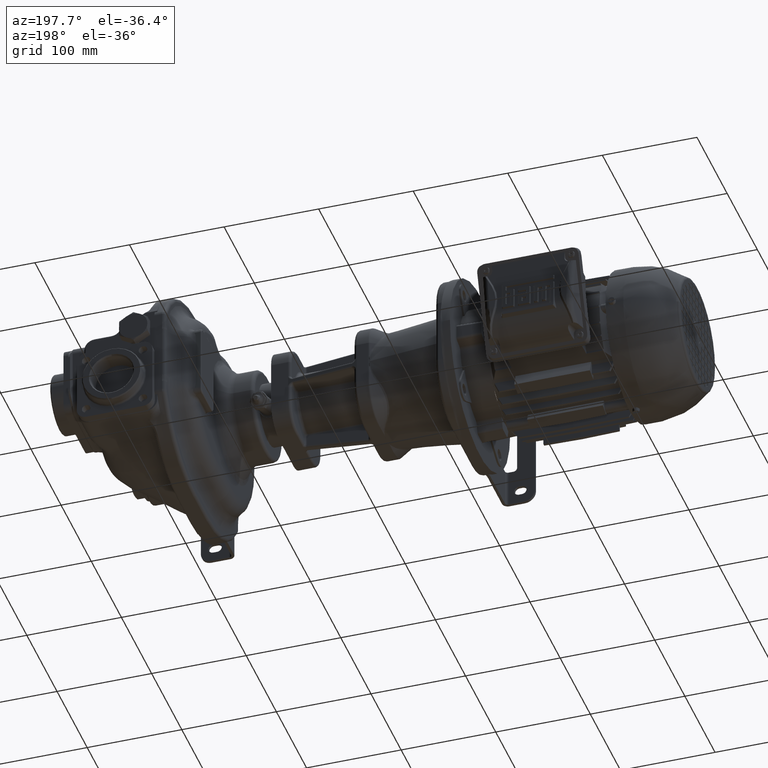
[diagram: clean part render]
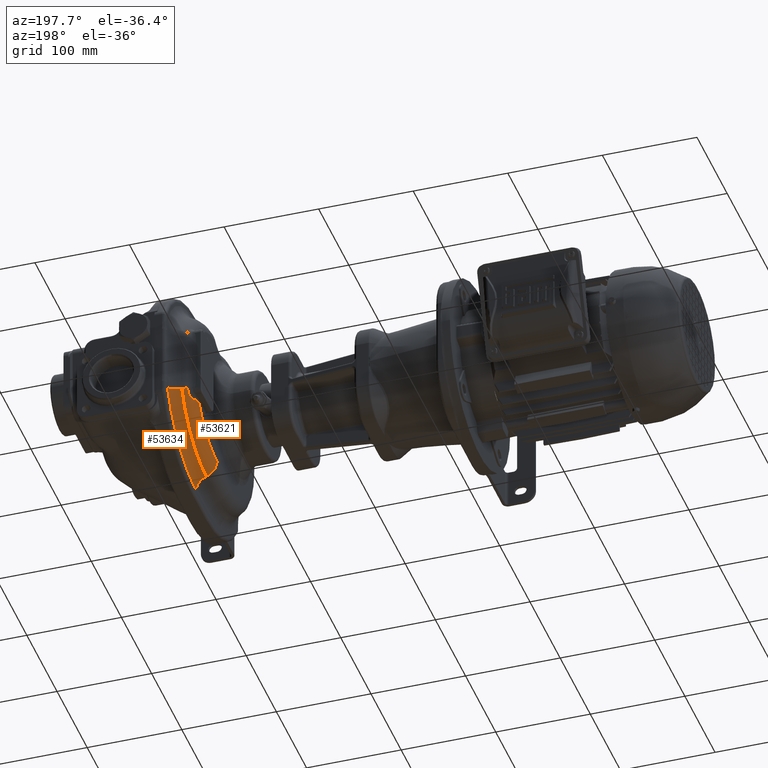
[diagram: same view with one multi-face feature highlighted, each face labeled with its STEP entity id]
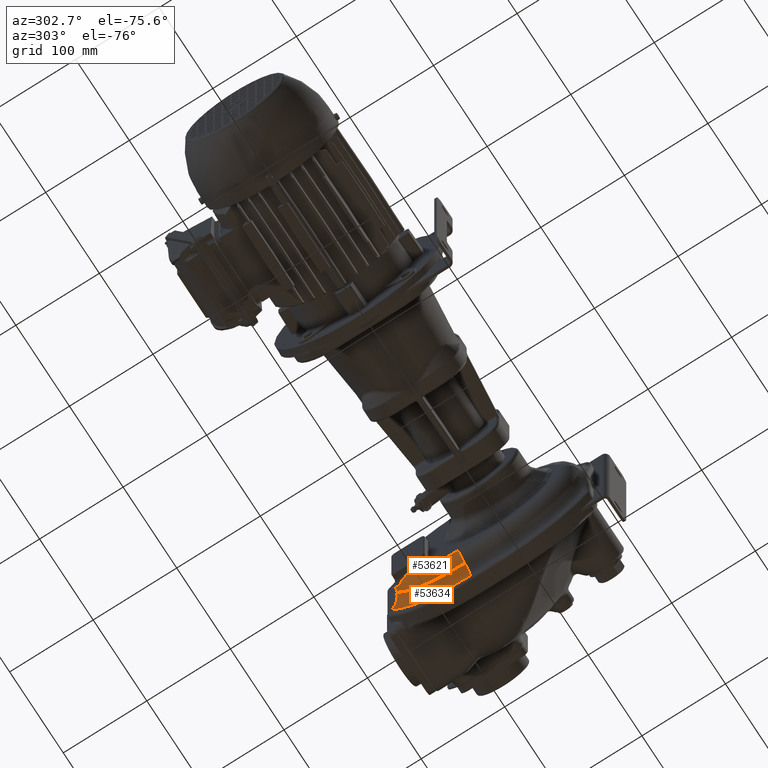
[diagram: same view with one multi-face feature highlighted, each face labeled with its STEP entity id]
A machine part, auxiliary view. The highlighted faces form ONE feature: a constant-radius fillet chain: 2 tangent blend faces with common blend radius 16.5 mm. The faces share edges in the B-rep.
A second angle (auxiliary view) of the same feature is appended — it is thin or edge-on in the first view.
Their STEP definitions:
[1] entity #53621 (Torus):
#8362=CARTESIAN_POINT('',(-3.45E1,1.58E2,-8.2E1));
#8363=DIRECTION('',(0.E0,-1.E0,0.E0));
#8364=DIRECTION('',(-1.E0,0.E0,0.E0));
#8365=AXIS2_PLACEMENT_3D('',#8362,#8363,#8364);
#8722=CARTESIAN_POINT('',(-5.15E1,1.58E2,-9.E0));
#8723=DIRECTION('',(-1.E0,0.E0,0.E0));
#8724=DIRECTION('',(0.E0,8.168986042757E-1,-5.767813019961E-1));
#8725=AXIS2_PLACEMENT_3D('',#8722,#8723,#8724);
#8768=CARTESIAN_POINT('',(-4.016666666667E1,1.58E2,-9.E0));
#8769=DIRECTION('',(1.E0,0.E0,0.E0));
#8770=DIRECTION('',(0.E0,0.E0,-1.E0));
#8771=AXIS2_PLACEMENT_3D('',#8768,#8769,#8770);
#8773=CARTESIAN_POINT('',(-3.45E1,2.247428571429E2,-3.857010348998E1));
#8774=DIRECTION('',(0.E0,-4.050699108217E-1,-9.142857142857E-1));
#8775=DIRECTION('',(-6.533818118503E-1,6.921403779604E-1,-3.066494825368E-1));
#8776=AXIS2_PLACEMENT_3D('',#8773,#8774,#8775);
#8778=CARTESIAN_POINT('',(-4.560749080146E1,2.365092435682E2,
-4.378314469311E1));
#8779=CARTESIAN_POINT('',(-4.558394132662E1,2.364582155587E2,
-4.394849752441E1));
#8780=CARTESIAN_POINT('',(-4.554178966168E1,2.363523932950E2,
-4.427406632277E1));
#8781=CARTESIAN_POINT('',(-4.549310973546E1,2.361832216683E2,
-4.474707231386E1));
#8782=CARTESIAN_POINT('',(-4.545867026525E1,2.360045353461E2,
-4.520444553773E1));
#8783=CARTESIAN_POINT('',(-4.543806966511E1,2.358170215088E2,
-4.564639508944E1));
#8784=CARTESIAN_POINT('',(-4.543088736160E1,2.356212338136E2,
-4.607324166624E1));
#8785=CARTESIAN_POINT('',(-4.543669745350E1,2.354175956405E2,
-4.648539878494E1));
#8786=CARTESIAN_POINT('',(-4.545508784022E1,2.352064066676E2,
-4.688333207859E1));
#8787=CARTESIAN_POINT('',(-4.548566032971E1,2.349879233011E2,
-4.726740804817E1));
#8788=CARTESIAN_POINT('',(-4.552803427902E1,2.347623162329E2,
-4.763798877668E1));
#8789=CARTESIAN_POINT('',(-4.558184725033E1,2.345297074173E2,
-4.799536524695E1));
#8790=CARTESIAN_POINT('',(-4.564673115694E1,2.342902399182E2,
-4.833967726266E1));
#8791=CARTESIAN_POINT('',(-4.572231649191E1,2.340440404050E2,
-4.867099228365E1));
#8792=CARTESIAN_POINT('',(-4.580821485157E1,2.337912622270E2,
-4.898926529532E1));
#8793=CARTESIAN_POINT('',(-4.590401035799E1,2.335320910821E2,
-4.929435729590E1));
#8794=CARTESIAN_POINT('',(-4.600924935311E1,2.332667595968E2,
-4.958604066332E1));
#8795=CARTESIAN_POINT('',(-4.612343218690E1,2.329955549751E2,
-4.986401581282E1));
#8796=CARTESIAN_POINT('',(-4.624601029575E1,2.327188194942E2,
-5.012793233575E1));
#8797=CARTESIAN_POINT('',(-4.637638267731E1,2.324369548201E2,
-5.037740566142E1));
#8798=CARTESIAN_POINT('',(-4.651389718193E1,2.321504196761E2,
-5.061203787767E1));
#8799=CARTESIAN_POINT('',(-4.665785413556E1,2.318597259769E2,
-5.083143730383E1));
#8800=CARTESIAN_POINT('',(-4.680751389295E1,2.315654302071E2,
-5.103523850877E1));
#8801=CARTESIAN_POINT('',(-4.696210561258E1,2.312681250848E2,
-5.122311827801E1));
#8802=CARTESIAN_POINT('',(-4.712083851835E1,2.309684283919E2,
-5.139480963441E1));
#8803=CARTESIAN_POINT('',(-4.728291368029E1,2.306669722532E2,
-5.155011129724E1));
#8804=CARTESIAN_POINT('',(-4.744753579358E1,2.303643924125E2,
-5.168889404857E1));
#8805=CARTESIAN_POINT('',(-4.761392477242E1,2.300613177933E2,
-5.181110329962E1));
#8806=CARTESIAN_POINT('',(-4.778132543986E1,2.297583626332E2,
-5.191675813944E1));
#8807=CARTESIAN_POINT('',(-4.794901794030E1,2.294561160143E2,
-5.200594816592E1));
#8808=CARTESIAN_POINT('',(-4.811631852849E1,2.291551475019E2,
-5.207882631160E1));
#8809=CARTESIAN_POINT('',(-4.828260973353E1,2.288559575865E2,
-5.213560686668E1));
#8810=CARTESIAN_POINT('',(-4.844724968595E1,2.285591461244E2,
-5.217653624636E1));
#8811=CARTESIAN_POINT('',(-4.860983586712E1,2.282649357521E2,
-5.220194107550E1));
#8812=CARTESIAN_POINT('',(-4.876979879621E1,2.279739038968E2,
-5.221213008333E1));
#8813=CARTESIAN_POINT('',(-4.892673544990E1,2.276863875560E2,
-5.220745885032E1));
#8814=CARTESIAN_POINT('',(-4.908025798097E1,2.274027508922E2,
-5.218829270713E1));
#8815=CARTESIAN_POINT('',(-4.923006157068E1,2.271232587991E2,
-5.215499498549E1));
#8816=CARTESIAN_POINT('',(-4.932721004055E1,2.269399779029E2,
-5.212364071481E1));
#8817=CARTESIAN_POINT('',(-4.937509976005E1,2.268490730544E2,
-5.210572241431E1));
#8819=CARTESIAN_POINT('',(-4.937509976005E1,2.268490730544E2,
-5.210572241431E1));
#8820=CARTESIAN_POINT('',(-4.947690643178E1,2.266558224366E2,
-5.206763053674E1));
#8821=CARTESIAN_POINT('',(-4.967332501294E1,2.262654840565E2,
-5.199135757178E1));
#8822=CARTESIAN_POINT('',(-4.994613919355E1,2.256689047392E2,
-5.187768397482E1));
#8823=CARTESIAN_POINT('',(-5.019668002499E1,2.250623543161E2,
-5.176595958140E1));
#8824=CARTESIAN_POINT('',(-5.042463927359E1,2.244469292422E2,
-5.165747235636E1));
#8825=CARTESIAN_POINT('',(-5.062978668854E1,2.238239233260E2,
-5.155361907445E1));
#8826=CARTESIAN_POINT('',(-5.081202144549E1,2.231948024964E2,
-5.145588415225E1));
#8827=CARTESIAN_POINT('',(-5.097139155857E1,2.225612485352E2,
-5.136582811162E1));
#8828=CARTESIAN_POINT('',(-5.110813002555E1,2.219251675939E2,
-5.128505886842E1));
#8829=CARTESIAN_POINT('',(-5.122268563367E1,2.212886956480E2,
-5.121519585028E1));
#8830=CARTESIAN_POINT('',(-5.131575035815E1,2.206542325622E2,
-5.115782157728E1));
#8831=CARTESIAN_POINT('',(-5.138828901316E1,2.200243068328E2,
-5.111442614243E1));
#8832=CARTESIAN_POINT('',(-5.144152644981E1,2.194020010311E2,
-5.108633296702E1));
#8833=CARTESIAN_POINT('',(-5.147704210167E1,2.187891634051E2,
-5.107465802916E1));
#8834=CARTESIAN_POINT('',(-5.149636837813E1,2.181931332528E2,
-5.108014147378E1));
#8835=CARTESIAN_POINT('',(-5.149999999775E1,2.178171317466E2,
-5.109523891517E1));
#8836=CARTESIAN_POINT('',(-5.15E1,2.176335981121E2,-5.110503504184E1));
#8889=CARTESIAN_POINT('',(-4.560749080146E1,2.365092435682E2,
-4.378314469311E1));
#36054=CARTESIAN_POINT('',(-5.15E1,1.58E2,-8.2E1));
#36056=VERTEX_POINT('',#36054);
#36070=CARTESIAN_POINT('',(-4.016666666667E1,1.58E2,-9.802775370690E1));
#36071=VERTEX_POINT('',#36070);
#36076=CARTESIAN_POINT('',(-4.016666666667E1,2.393968033892E2,
-4.506246425470E1));
#36077=VERTEX_POINT('',#36076);
#36178=VERTEX_POINT('',#8889);
#36181=VERTEX_POINT('',#8817);
#36183=VERTEX_POINT('',#8836);
#53605=CARTESIAN_POINT('',(-3.45E1,1.58E2,-9.E0));
#53606=DIRECTION('',(-1.E0,0.E0,0.E0));
#53607=DIRECTION('',(0.E0,9.143549084855E-1,-4.049136961483E-1));
#53608=AXIS2_PLACEMENT_3D('',#53605,#53606,#53607);
#53609=TOROIDAL_SURFACE('',#53608,7.3E1,1.7E1);
#53611=ORIENTED_EDGE('',*,*,#53610,.T.);
#53613=ORIENTED_EDGE('',*,*,#53612,.F.);
#53615=ORIENTED_EDGE('',*,*,#53614,.T.);
#53616=ORIENTED_EDGE('',*,*,#53595,.T.);
#53617=ORIENTED_EDGE('',*,*,#53194,.T.);
#53618=ORIENTED_EDGE('',*,*,#52559,.T.);
#53619=EDGE_LOOP('',(#53611,#53613,#53615,#53616,#53617,#53618));
#53620=FACE_OUTER_BOUND('',#53619,.F.);
#53621=ADVANCED_FACE('',(#53620),#53609,.T.);
#8366=CIRCLE('',#8365,1.7E1);
#8726=CIRCLE('',#8725,7.3E1);
#8772=CIRCLE('',#8771,8.902775370690E1);
#8777=CIRCLE('',#8776,1.7E1);
#8818=B_SPLINE_CURVE_WITH_KNOTS('',3,(#8778,#8779,#8780,#8781,#8782,#8783,#8784,
#8785,#8786,#8787,#8788,#8789,#8790,#8791,#8792,#8793,#8794,#8795,#8796,#8797,
#8798,#8799,#8800,#8801,#8802,#8803,#8804,#8805,#8806,#8807,#8808,#8809,#8810,
#8811,#8812,#8813,#8814,#8815,#8816,#8817),.UNSPECIFIED.,.F.,.F.,(4,1,1,1,1,1,1,
1,1,1,1,1,1,1,1,1,1,1,1,1,1,1,1,1,1,1,1,1,1,1,1,1,1,1,1,1,1,4),(0.E0,
2.702702702703E-2,5.405405405405E-2,8.108108108108E-2,1.081081081081E-1,
1.351351351351E-1,1.621621621622E-1,1.891891891892E-1,2.162162162162E-1,
2.432432432432E-1,2.702702702703E-1,2.972972972973E-1,3.243243243243E-1,
3.513513513514E-1,3.783783783784E-1,4.054054054054E-1,4.324324324324E-1,
4.594594594595E-1,4.864864864865E-1,5.135135135135E-1,5.405405405405E-1,
5.675675675676E-1,5.945945945946E-1,6.216216216216E-1,6.486486486486E-1,
6.756756756757E-1,7.027027027027E-1,7.297297297297E-1,7.567567567568E-1,
7.837837837838E-1,8.108108108108E-1,8.378378378378E-1,8.648648648649E-1,
8.918918918919E-1,9.189189189189E-1,9.459459459459E-1,9.729729729730E-1,1.E0),
.UNSPECIFIED.);
#8837=B_SPLINE_CURVE_WITH_KNOTS('',3,(#8819,#8820,#8821,#8822,#8823,#8824,#8825,
#8826,#8827,#8828,#8829,#8830,#8831,#8832,#8833,#8834,#8835,#8836),
.UNSPECIFIED.,.F.,.F.,(4,1,1,1,1,1,1,1,1,1,1,1,1,1,1,4),(0.E0,6.666666666667E-2,
1.333333333333E-1,2.E-1,2.666666666667E-1,3.333333333333E-1,4.E-1,
4.666666666667E-1,5.333333333333E-1,6.E-1,6.666666666667E-1,7.333333333333E-1,
8.E-1,8.666666666667E-1,9.333333333333E-1,1.E0),.UNSPECIFIED.);
#52559=EDGE_CURVE('',#36056,#36071,#8366,.T.);
#53194=EDGE_CURVE('',#36183,#36056,#8726,.T.);
#53595=EDGE_CURVE('',#36181,#36183,#8837,.T.);
#53610=EDGE_CURVE('',#36071,#36077,#8772,.T.);
#53612=EDGE_CURVE('',#36178,#36077,#8777,.T.);
#53614=EDGE_CURVE('',#36178,#36181,#8818,.T.);
[2] entity #53634 (Torus):
#8381=CARTESIAN_POINT('',(-2.95E1,1.58E2,-9.E0));
#8382=DIRECTION('',(1.E0,0.E0,0.E0));
#8383=DIRECTION('',(0.E0,-1.091959381508E-14,-1.E0));
#8384=AXIS2_PLACEMENT_3D('',#8381,#8382,#8383);
#8768=CARTESIAN_POINT('',(-4.016666666667E1,1.58E2,-9.E0));
#8769=DIRECTION('',(1.E0,0.E0,0.E0));
#8770=DIRECTION('',(0.E0,0.E0,-1.E0));
#8771=AXIS2_PLACEMENT_3D('',#8768,#8769,#8770);
#8838=CARTESIAN_POINT('',(-4.55E1,1.58E2,-1.131126983722E2));
#8839=DIRECTION('',(0.E0,1.E0,0.E0));
#8840=DIRECTION('',(3.333333333333E-1,0.E0,9.428090415821E-1));
#8841=AXIS2_PLACEMENT_3D('',#8838,#8839,#8840);
#8854=CARTESIAN_POINT('',(-4.55E1,2.531887527974E2,-5.117292144503E1));
#8855=DIRECTION('',(0.E0,4.050699108217E-1,9.142857142857E-1));
#8856=DIRECTION('',(3.333333333333E-1,-8.619968380179E-1,3.819035743955E-1));
#8857=AXIS2_PLACEMENT_3D('',#8854,#8855,#8856);
#36070=CARTESIAN_POINT('',(-4.016666666667E1,1.58E2,-9.802775370690E1));
#36071=VERTEX_POINT('',#36070);
#36073=CARTESIAN_POINT('',(-2.95E1,1.58E2,-1.131126983722E2));
#36075=VERTEX_POINT('',#36073);
#36076=CARTESIAN_POINT('',(-4.016666666667E1,2.393968033892E2,
-4.506246425470E1));
#36077=VERTEX_POINT('',#36076);
#36078=CARTESIAN_POINT('',(-2.95E1,2.531887527974E2,-5.117292144503E1));
#36079=VERTEX_POINT('',#36078);
#53622=CARTESIAN_POINT('',(-4.55E1,1.58E2,-9.E0));
#53623=DIRECTION('',(-1.E0,0.E0,0.E0));
#53624=DIRECTION('',(0.E0,-1.739009426900E-4,-9.999999848792E-1));
#53625=AXIS2_PLACEMENT_3D('',#53622,#53623,#53624);
#53626=TOROIDAL_SURFACE('',#53625,1.041126983722E2,1.6E1);
#53627=ORIENTED_EDGE('',*,*,#53610,.F.);
#53628=ORIENTED_EDGE('',*,*,#52576,.T.);
#53629=ORIENTED_EDGE('',*,*,#52590,.T.);
#53631=ORIENTED_EDGE('',*,*,#53630,.F.);
#53632=EDGE_LOOP('',(#53627,#53628,#53629,#53631));
#53633=FACE_OUTER_BOUND('',#53632,.F.);
#53634=ADVANCED_FACE('',(#53633),#53626,.F.);
#8385=CIRCLE('',#8384,1.041126983722E2);
#8772=CIRCLE('',#8771,8.902775370690E1);
#8842=CIRCLE('',#8841,1.6E1);
#8858=CIRCLE('',#8857,1.6E1);
#52576=EDGE_CURVE('',#36071,#36075,#8842,.T.);
#52590=EDGE_CURVE('',#36075,#36079,#8385,.T.);
#53610=EDGE_CURVE('',#36071,#36077,#8772,.T.);
#53630=EDGE_CURVE('',#36077,#36079,#8858,.T.);